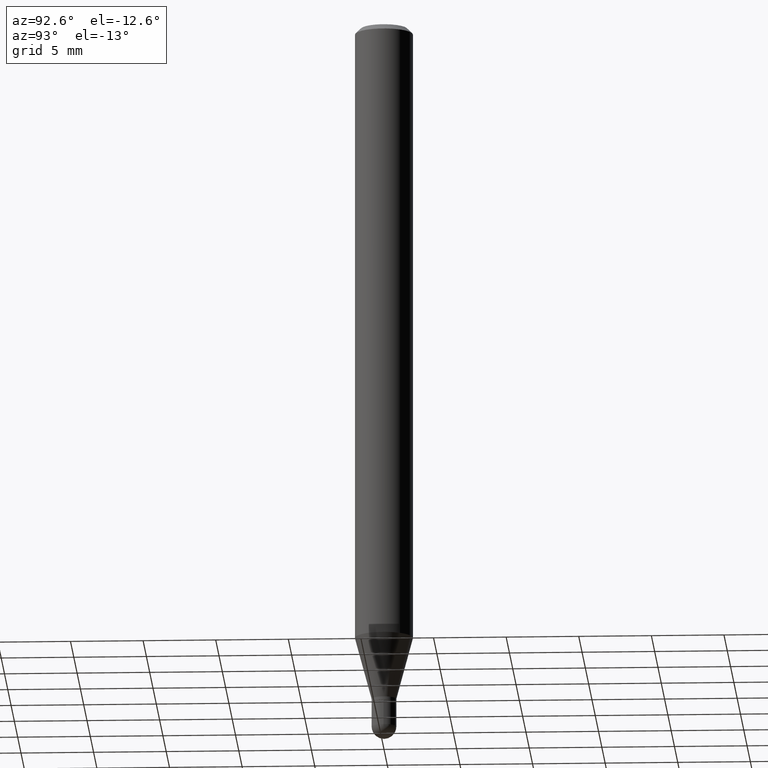
[diagram: clean part render]
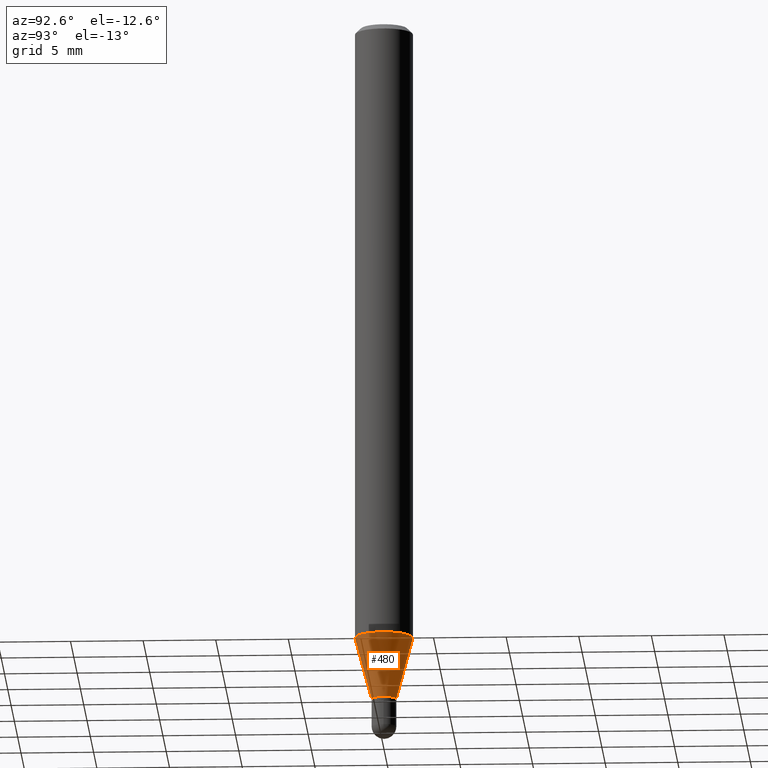
[diagram: same view with one face highlighted and labeled with its STEP entity id]
A machine part, auxiliary view. The second image highlights one B-rep face of the part: STEP entity #480.
In plain terms, the highlighted conical surface has half-angle 15 deg.
Its self-contained STEP definition (entity closure, byte-faithful):
#4 = ORIENTED_EDGE ( 'NONE', *, *, #497, .F. ) ;
#22 = AXIS2_PLACEMENT_3D ( 'NONE', #481, #239, #287 ) ;
#57 = AXIS2_PLACEMENT_3D ( 'NONE', #478, #118, #155 ) ;
#96 = LINE ( 'NONE', #427, #105 ) ;
#105 = VECTOR ( 'NONE', #380, 39.37007874015748143 ) ;
#118 = DIRECTION ( 'NONE',  ( -2.445447766413159620E-29, 3.491511468994126163E-15, 1.000000000000000000 ) ) ;
#121 = VERTEX_POINT ( 'NONE', #132 ) ;
#122 = CIRCLE ( 'NONE', #22, 0.07875000000000000056 ) ;
#124 = ORIENTED_EDGE ( 'NONE', *, *, #158, .T. ) ;
#128 = DIRECTION ( 'NONE',  ( -2.445447766413159620E-29, 3.491511468994126163E-15, 1.000000000000000000 ) ) ;
#131 = EDGE_CURVE ( 'NONE', #274, #121, #96, .T. ) ;
#132 = CARTESIAN_POINT ( 'NONE',  ( -5.499083108677522263E-16, -0.07875000000000592637, -1.689438098417130218 ) ) ;
#143 = VERTEX_POINT ( 'NONE', #387 ) ;
#148 = EDGE_LOOP ( 'NONE', ( #124, #185, #4, #316 ) ) ;
#153 = VECTOR ( 'NONE', #411, 39.37007874015748143 ) ;
#155 = DIRECTION ( 'NONE',  ( -6.982962677686265922E-15, -1.000000000000000000, 0.000000000000000000 ) ) ;
#158 = EDGE_CURVE ( 'NONE', #274, #487, #382, .T. ) ;
#177 = DIRECTION ( 'NONE',  ( -6.982962677686265922E-15, -1.000000000000000000, 0.000000000000000000 ) ) ;
#185 = ORIENTED_EDGE ( 'NONE', *, *, #388, .T. ) ;
#201 = LINE ( 'NONE', #362, #153 ) ;
#239 = DIRECTION ( 'NONE',  ( -2.445447766413159620E-29, 3.491511468994126163E-15, 1.000000000000000000 ) ) ;
#274 = VERTEX_POINT ( 'NONE', #505 ) ;
#287 = DIRECTION ( 'NONE',  ( -6.982962677686264344E-15, -1.000000000000000000, 3.469013325287953293E-15 ) ) ;
#316 = ORIENTED_EDGE ( 'NONE', *, *, #131, .F. ) ;
#344 = CARTESIAN_POINT ( 'NONE',  ( 4.544864673878857375E-29, -6.488974065125583763E-15, -1.858500000000000041 ) ) ;
#362 = CARTESIAN_POINT ( 'NONE',  ( 2.376765451117983827E-16, 0.03344999999999343637, -1.858500000000000041 ) ) ;
#380 = DIRECTION ( 'NONE',  ( -1.807323732225332900E-15, -0.2588190451025185745, 0.9659258262890689783 ) ) ;
#382 = CIRCLE ( 'NONE', #508, 0.03344999999999992424 ) ;
#387 = CARTESIAN_POINT ( 'NONE',  ( 5.595524044111199211E-16, 0.07874999999999408862, -1.689438098417130885 ) ) ;
#388 = EDGE_CURVE ( 'NONE', #487, #143, #201, .T. ) ;
#411 = DIRECTION ( 'NONE',  ( 1.839019923739603076E-15, 0.2588190451025253469, 0.9659258262890670910 ) ) ;
#427 = CARTESIAN_POINT ( 'NONE',  ( -2.335801015685596573E-16, -0.03345000000000641210, -1.858500000000000041 ) ) ;
#451 = CARTESIAN_POINT ( 'NONE',  ( 3.986144747614593244E-16, 0.03344999999999343637, -1.858500000000000041 ) ) ;
#474 = CONICAL_SURFACE ( 'NONE', #57, 0.03344999999999992424, 0.2617993877991506846 ) ;
#478 = CARTESIAN_POINT ( 'NONE',  ( 4.544864673878857375E-29, -6.488974065125583763E-15, -1.858500000000000041 ) ) ;
#480 = ADVANCED_FACE ( 'NONE', ( #484 ), #474, .T. ) ;
#481 = CARTESIAN_POINT ( 'NONE',  ( 4.131432624267467595E-29, -5.898692496779038279E-15, -1.689438098417130441 ) ) ;
#484 = FACE_OUTER_BOUND ( 'NONE', #148, .T. ) ;
#487 = VERTEX_POINT ( 'NONE', #451 ) ;
#497 = EDGE_CURVE ( 'NONE', #121, #143, #122, .T. ) ;
#505 = CARTESIAN_POINT ( 'NONE',  ( -2.335801015685596573E-16, -0.03345000000000641210, -1.858500000000000041 ) ) ;
#508 = AXIS2_PLACEMENT_3D ( 'NONE', #344, #128, #177 ) ;